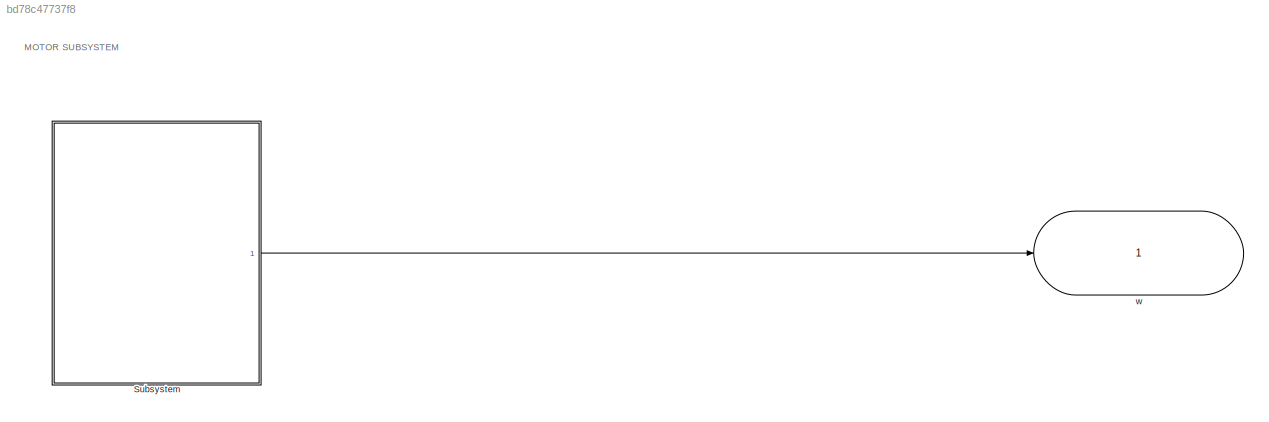
MODEL slx_bd78c47737f8
KIND model
CONFIG AbsTol = auto
CONFIG EnableMultiTasking = off
CONFIG FixedStep = auto
CONFIG MaxStep = auto
CONFIG MinStep = auto
CONFIG RelTol = 1e-3
CONFIG SampleTimeConstraint = Unconstrained
CONFIG SolverName = VariableStepAuto
CONFIG StartTime = 0.0
CONFIG StopTime = 10.0
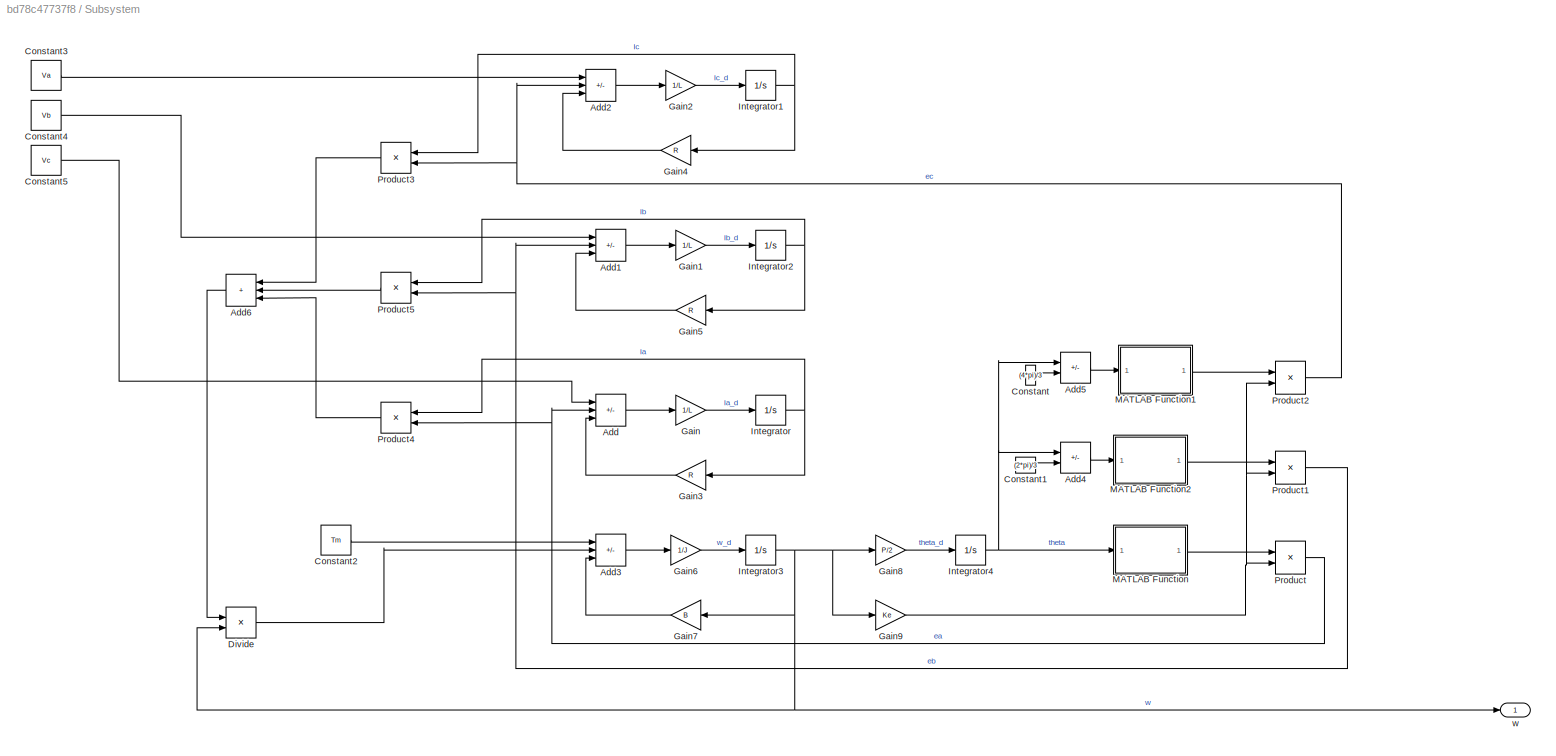
BLOCK [SubSystem] Subsystem
  Ports = [0, 1]
  RequestExecContextInheritance = off
BLOCK [Sum] Subsystem/Add
  IconShape = rectangular
  Inputs = +--
  Ports = [3, 1]
BLOCK [Sum] Subsystem/Add1
  IconShape = rectangular
  Inputs = +--
  Ports = [3, 1]
BLOCK [Sum] Subsystem/Add2
  IconShape = rectangular
  Inputs = +--
  Ports = [3, 1]
BLOCK [Sum] Subsystem/Add3
  IconShape = rectangular
  Inputs = -+-
  Ports = [3, 1]
BLOCK [Sum] Subsystem/Add4
  IconShape = rectangular
  Inputs = +-
  Ports = [2, 1]
BLOCK [Sum] Subsystem/Add5
  IconShape = rectangular
  Inputs = +-
  Ports = [2, 1]
BLOCK [Sum] Subsystem/Add6
  IconShape = rectangular
  Inputs = +++
  NameLocation = top
  Ports = [3, 1]
BLOCK [Constant] Subsystem/Constant
  Value = (4*pi)/3
BLOCK [Constant] Subsystem/Constant1
  Value = (2*pi)/3
BLOCK [Constant] Subsystem/Constant2
  Value = Tm
BLOCK [Constant] Subsystem/Constant3
  Value = Va
BLOCK [Constant] Subsystem/Constant4
  Value = Vb
BLOCK [Constant] Subsystem/Constant5
  Value = Vc
BLOCK [Product] Subsystem/Divide
  Inputs = */
  Ports = [2, 1]
BLOCK [Gain] Subsystem/Gain
  Gain = 1/L
BLOCK [Gain] Subsystem/Gain1
  Gain = 1/L
BLOCK [Gain] Subsystem/Gain2
  Gain = 1/L
BLOCK [Gain] Subsystem/Gain3
  Gain = R
  NameLocation = top
BLOCK [Gain] Subsystem/Gain4
  Gain = R
  NameLocation = top
BLOCK [Gain] Subsystem/Gain5
  Gain = R
  NameLocation = top
BLOCK [Gain] Subsystem/Gain6
  Gain = 1/J
BLOCK [Gain] Subsystem/Gain7
  Gain = B
  NameLocation = top
BLOCK [Gain] Subsystem/Gain8
  Gain = P/2
BLOCK [Gain] Subsystem/Gain9
  Gain = Ke
BLOCK [Integrator] Subsystem/Integrator
  Ports = [1, 1]
BLOCK [Integrator] Subsystem/Integrator1
  Ports = [1, 1]
BLOCK [Integrator] Subsystem/Integrator2
  Ports = [1, 1]
BLOCK [Integrator] Subsystem/Integrator3
  Ports = [1, 1]
BLOCK [Integrator] Subsystem/Integrator4
  Ports = [1, 1]
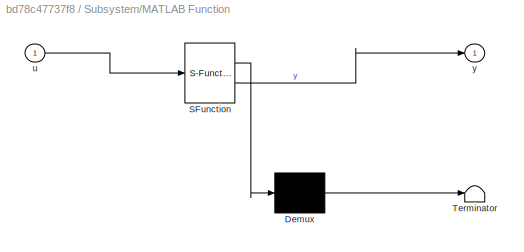
BLOCK [SubSystem] Subsystem/MATLAB Function
  ErrorFcn = Stateflow.Translate.translate
  PermitHierarchicalResolution = ExplicitOnly
  Ports = [1, 1]
  RequestExecContextInheritance = off
  SFBlockType = MATLAB Function
  TreatAsAtomicUnit = on
BLOCK [Demux] Subsystem/MATLAB Function/ Demux 
  Outputs = 1
  Ports = [1, 1]
BLOCK [S-Function] Subsystem/MATLAB Function/ SFunction 
  EnableBusSupport = on
  FunctionName = sf_sfun
  PortCounts = [1 2]
  Ports = [1, 2]
  SFcnIsStateOwnerBlock = off
  SFunctionDeploymentMode = off
  Tag = Stateflow S-Function 2
BLOCK [Terminator] Subsystem/MATLAB Function/ Terminator 
BLOCK [Inport] Subsystem/MATLAB Function/u
BLOCK [Outport] Subsystem/MATLAB Function/y
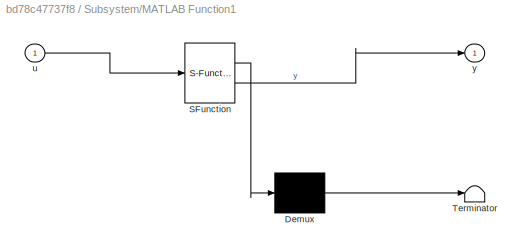
BLOCK [SubSystem] Subsystem/MATLAB Function1
  ErrorFcn = Stateflow.Translate.translate
  PermitHierarchicalResolution = ExplicitOnly
  Ports = [1, 1]
  RequestExecContextInheritance = off
  SFBlockType = MATLAB Function
  TreatAsAtomicUnit = on
BLOCK [Demux] Subsystem/MATLAB Function1/ Demux 
  Outputs = 1
  Ports = [1, 1]
BLOCK [S-Function] Subsystem/MATLAB Function1/ SFunction 
  EnableBusSupport = on
  FunctionName = sf_sfun
  PortCounts = [1 2]
  Ports = [1, 2]
  SFcnIsStateOwnerBlock = off
  SFunctionDeploymentMode = off
  Tag = Stateflow S-Function 1
BLOCK [Terminator] Subsystem/MATLAB Function1/ Terminator 
BLOCK [Inport] Subsystem/MATLAB Function1/u
BLOCK [Outport] Subsystem/MATLAB Function1/y
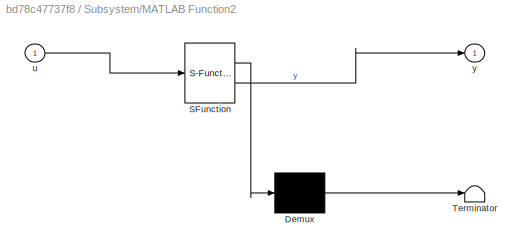
BLOCK [SubSystem] Subsystem/MATLAB Function2
  ErrorFcn = Stateflow.Translate.translate
  PermitHierarchicalResolution = ExplicitOnly
  Ports = [1, 1]
  RequestExecContextInheritance = off
  SFBlockType = MATLAB Function
  TreatAsAtomicUnit = on
BLOCK [Demux] Subsystem/MATLAB Function2/ Demux 
  Outputs = 1
  Ports = [1, 1]
BLOCK [S-Function] Subsystem/MATLAB Function2/ SFunction 
  EnableBusSupport = on
  FunctionName = sf_sfun
  PortCounts = [1 2]
  Ports = [1, 2]
  SFcnIsStateOwnerBlock = off
  SFunctionDeploymentMode = off
  Tag = Stateflow S-Function 3
BLOCK [Terminator] Subsystem/MATLAB Function2/ Terminator 
BLOCK [Inport] Subsystem/MATLAB Function2/u
BLOCK [Outport] Subsystem/MATLAB Function2/y
BLOCK [Product] Subsystem/Product
  Ports = [2, 1]
BLOCK [Product] Subsystem/Product1
  Ports = [2, 1]
BLOCK [Product] Subsystem/Product2
  Ports = [2, 1]
BLOCK [Product] Subsystem/Product3
  NameLocation = top
  Ports = [2, 1]
BLOCK [Product] Subsystem/Product4
  NameLocation = top
  Ports = [2, 1]
BLOCK [Product] Subsystem/Product5
  NameLocation = top
  Ports = [2, 1]
BLOCK [Outport] Subsystem/w
BLOCK [Outport] w
ANNOTATION (root): MOTOR SUBSYSTEM
LINE Subsystem/Add1:1 -> Subsystem/Gain1:1
LINE Subsystem/Add2:1 -> Subsystem/Gain2:1
LINE Subsystem/Add3:1 -> Subsystem/Gain6:1
LINE Subsystem/Add4:1 -> Subsystem/MATLAB Function2:1
LINE Subsystem/Add5:1 -> Subsystem/MATLAB Function1:1
LINE Subsystem/Add6:1 -> Subsystem/Divide:1
LINE Subsystem/Add:1 -> Subsystem/Gain:1
LINE Subsystem/Constant1:1 -> Subsystem/Add4:2
LINE Subsystem/Constant2:1 -> Subsystem/Add3:1
LINE Subsystem/Constant3:1 -> Subsystem/Add2:1
LINE Subsystem/Constant4:1 -> Subsystem/Add1:1
LINE Subsystem/Constant5:1 -> Subsystem/Add:1
LINE Subsystem/Constant:1 -> Subsystem/Add5:2
LINE Subsystem/Divide:1 -> Subsystem/Add3:2
LINE Subsystem/Gain1:1 -> Subsystem/Integrator2:1
LINE Subsystem/Gain2:1 -> Subsystem/Integrator1:1
LINE Subsystem/Gain3:1 -> Subsystem/Add:3
LINE Subsystem/Gain4:1 -> Subsystem/Add2:3
LINE Subsystem/Gain5:1 -> Subsystem/Add1:3
LINE Subsystem/Gain6:1 -> Subsystem/Integrator3:1
LINE Subsystem/Gain7:1 -> Subsystem/Add3:3
LINE Subsystem/Gain8:1 -> Subsystem/Integrator4:1
NET Subsystem/Gain9:1 -> Subsystem/Product1:2, Subsystem/Product2:2, Subsystem/Product:2
LINE Subsystem/Gain:1 -> Subsystem/Integrator:1
NET Subsystem/Integrator1:1 -> Subsystem/Gain4:1, Subsystem/Product3:1
NET Subsystem/Integrator2:1 -> Subsystem/Gain5:1, Subsystem/Product5:1
NET Subsystem/Integrator3:1 -> Subsystem/Divide:2, Subsystem/Gain7:1, Subsystem/Gain8:1, Subsystem/Gain9:1, Subsystem/w:1
NET Subsystem/Integrator4:1 -> Subsystem/Add4:1, Subsystem/Add5:1, Subsystem/MATLAB Function:1
NET Subsystem/Integrator:1 -> Subsystem/Gain3:1, Subsystem/Product4:1
LINE Subsystem/MATLAB Function1:1 -> Subsystem/Product2:1
LINE Subsystem/MATLAB Function2:1 -> Subsystem/Product1:1
LINE Subsystem/MATLAB Function:1 -> Subsystem/Product:1
NET Subsystem/Product1:1 -> Subsystem/Add1:2, Subsystem/Product5:2
NET Subsystem/Product2:1 -> Subsystem/Add2:2, Subsystem/Product3:2
LINE Subsystem/Product3:1 -> Subsystem/Add6:1
LINE Subsystem/Product4:1 -> Subsystem/Add6:3
LINE Subsystem/Product5:1 -> Subsystem/Add6:2
NET Subsystem/Product:1 -> Subsystem/Add:2, Subsystem/Product4:2
LINE Subsystem:1 -> w:1
note: NET lines group one-source signal fan-out (src -> all destinations, sorted); 1:1 wires keep LINE
CHART Subsystem/MATLAB Function states=1 transitions=1
  STATE_LABEL 'eML_blk_kernel()'
  STATE_LABEL 'SCRIPT:\nfunction y = fcn(u)\n\nif (u>=0 && u<((2*pi)/3))\n    y = 1;\nelseif(u>=((2*pi)/3) && u<pi)\n    y = 1-(6/pi*(u-((2*pi)/3)));\nelseif(u>=pi && u<((5*pi)/3))\n    y = -1;\nelse\n    y = -1+(6/pi*(u-((5*pi)/3)));\nend\nend\n\n'  <repeated x3 — deduplicated; at blocks: MATLAB Function, MATLAB Function2, MATLAB Function1>
CHART Subsystem/MATLAB Function2 states=1 transitions=1
  STATE_LABEL 'eML_blk_kernel()'
CHART Subsystem/MATLAB Function1 states=1 transitions=1
  STATE_LABEL 'eML_blk_kernel()'
CHART  states=0 transitions=0
CHART  states=0 transitions=0
CHART  states=0 transitions=0
